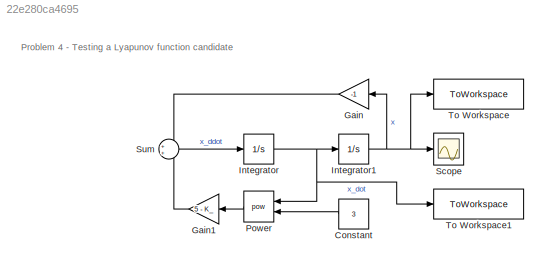
MODEL slx_22e280ca4695
KIND model
CONFIG AbsTol = auto
CONFIG EnableMultiTasking = off
CONFIG FixedStep = auto
CONFIG MaxStep = auto
CONFIG MinStep = auto
CONFIG RelTol = 1e-6
CONFIG SampleTimeConstraint = Unconstrained
CONFIG SolverName = VariableStepAuto
CONFIG StartTime = 0.0
CONFIG StopTime = t_sim
BLOCK [Constant] Constant
  Value = 3
BLOCK [Gain] Gain
  Gain = -1
BLOCK [Gain] Gain1
  Gain = 5 - K_
BLOCK [Integrator] Integrator
  InitialCondition = xdot_0
  LimitOutput = on
  LowerSaturationLimit = -100
  Ports = [1, 1]
  UpperSaturationLimit = 100
BLOCK [Integrator] Integrator1
  InitialCondition = x_0
  LimitOutput = on
  LowerSaturationLimit = -100
  Ports = [1, 1]
  UpperSaturationLimit = 100
BLOCK [Math] Power
  Operator = pow
  Ports = [2, 1]
BLOCK [Scope] Scope
  Floating = off
  NumInputPorts = 1
  Ports = [1]
  ScopeSpecificationString = Simulink.scopes.TimeScopeBlockCfg('CurrentConfiguration', extmgr.ConfigurationSet(extmgr.Configuration('Core','General UI',true),extmgr.Configuration('Core','Source UI',true),extmgr.Configuration('Sources','WiredSimulink',true),extmgr.Configuration('Visuals','Time Domain',true,'SerializedDisplays',{struct('MinYLimReal','-0.79972','MaxYLimReal','1.56391','YLabelReal','','MinYLimMag','0.00000','MaxY...<+1321ch>
BLOCK [Sum] Sum
  Ports = [2, 1]
BLOCK [ToWorkspace] To Workspace
  FixptAsFi = on
  MaxDataPoints = inf
  Ports = [1]
  SampleTime = -1
  SaveFormat = Timeseries
  VariableName = x_pos
BLOCK [ToWorkspace] To Workspace1
  FixptAsFi = on
  MaxDataPoints = inf
  Ports = [1]
  SampleTime = -1
  SaveFormat = Timeseries
  VariableName = x_dot
ANNOTATION (root): Problem 4 - Testing a Lyapunov function candidate
LINE Constant:1 -> Power:2
LINE Gain1:1 -> Sum:2
LINE Gain:1 -> Sum:1
NET Integrator1:1 -> Gain:1, Scope:1, To Workspace:1
NET Integrator:1 -> Integrator1:1, Power:1, To Workspace1:1
LINE Power:1 -> Gain1:1
LINE Sum:1 -> Integrator:1
note: NET lines group one-source signal fan-out (src -> all destinations, sorted); 1:1 wires keep LINE
